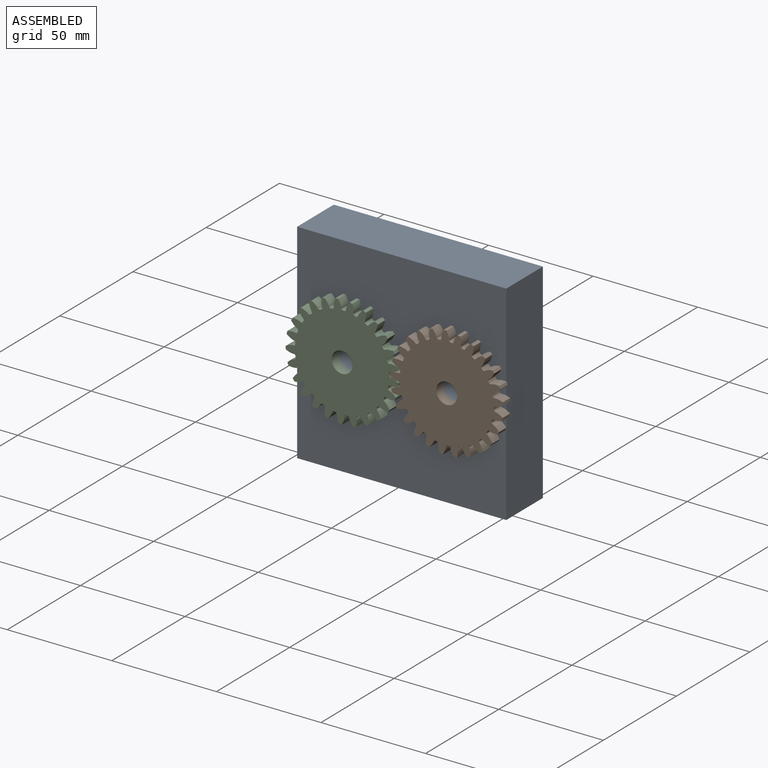
[diagram: assembled view]
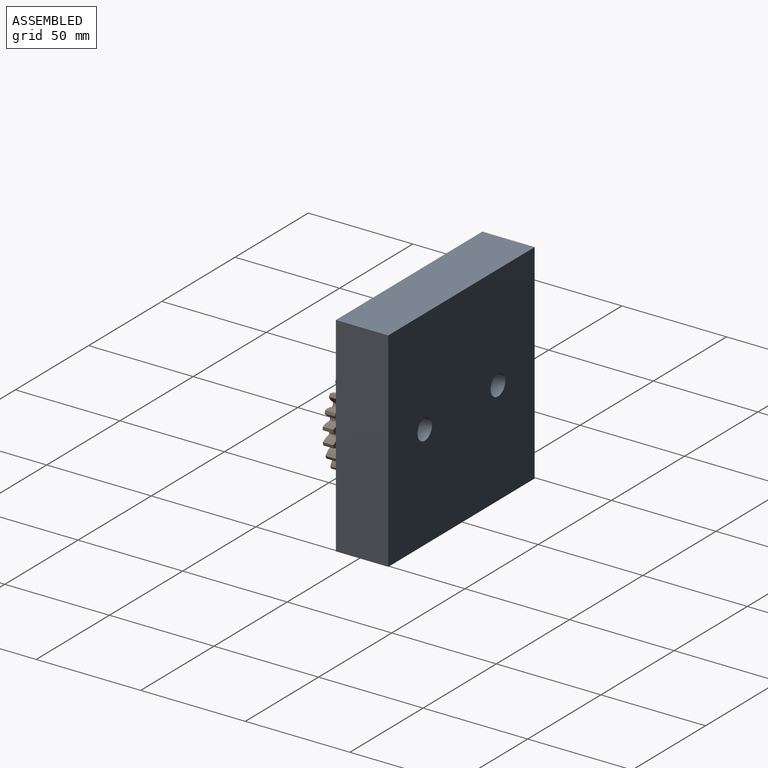
[diagram: assembled view, second angle]
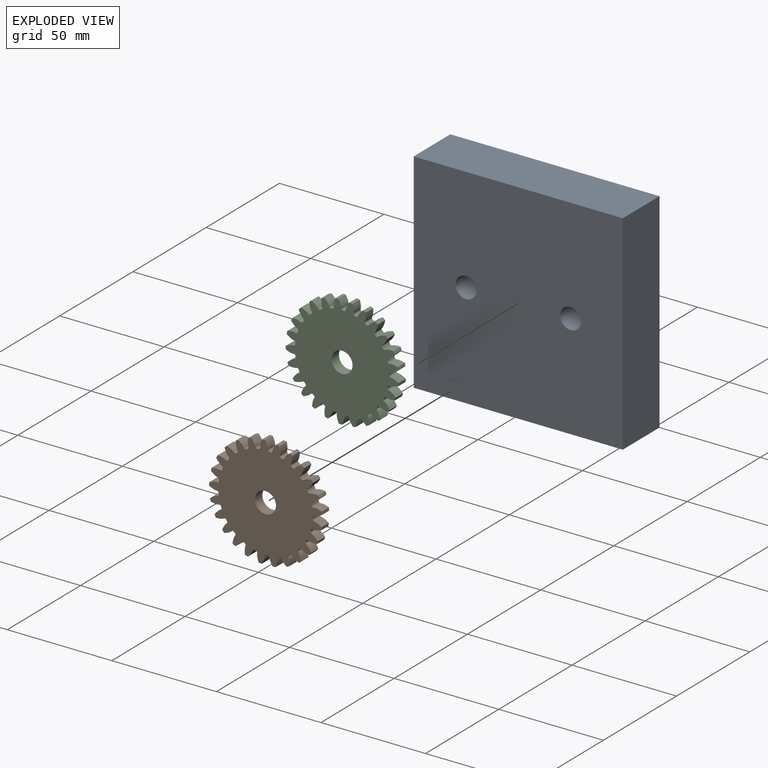
[diagram: exploded view]
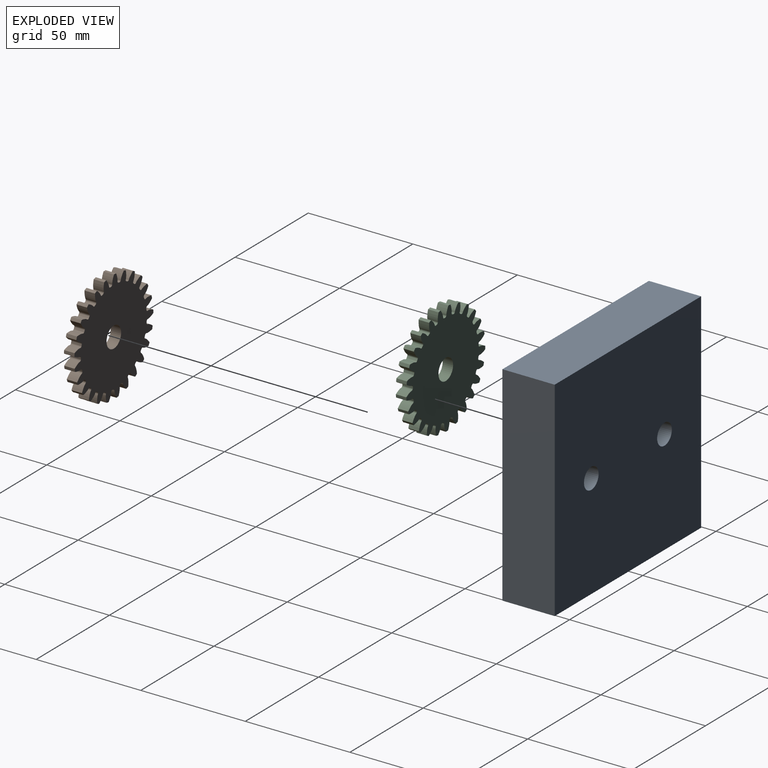
[diagram: exploded view, second angle]
ASSEMBLY  parts=3 mates=4
PART A: 8 faces, bbox 100x25x100 mm
  f0: plane 100x25mm, normal (0,0,1), area 2500mm2, adj f1,f5,f6,f7
  f1: plane 100x25mm, normal (-1,0,0), area 2500mm2, adj f0,f2,f6,f7
  f2: plane 100x25mm, normal (0,0,-1), area 2500mm2, adj f1,f5,f6,f7
  f3: cylinder r=5mm len=25mm, axis (0,1,0), area 785.4mm2, adj f6,f7
  f4: cylinder r=5mm len=25mm, axis (0,1,0), area 785.4mm2, adj f6,f7
  f5: plane 100x25mm, normal (1,0,0), area 2500mm2, adj f0,f2,f6,f7
  f6: plane 100x100mm, normal (0,-1,0), area 9842.9mm2, adj f0,f1,f2,f3,f4,f5
  f7: plane 100x100mm, normal (0,1,0), area 9842.9mm2, adj f0,f1,f2,f3,f4,f5
PART B: 153 faces, bbox 53.9x5x54 mm
  f0: cylinder r=27mm len=5mm, axis (0,1,0), area 7.2mm2, adj f24,f27,f138,f150
  f1: cylinder r=27mm len=5mm, axis (0,1,0), area 7.2mm2, adj f24,f27,f145,f148
  f2: cylinder r=27mm len=5mm, axis (0,1,0), area 7.2mm2, adj f24,f27,f133,f140
  f3: cylinder r=27mm len=5mm, axis (0,1,0), area 7.2mm2, adj f24,f27,f128,f135
  f4: cylinder r=27mm len=5mm, axis (0,1,0), area 7.2mm2, adj f24,f27,f123,f130
  f5: cylinder r=27mm len=5mm, axis (0,1,0), area 7.2mm2, adj f24,f27,f113,f125
  f6: cylinder r=27mm len=5mm, axis (0,1,0), area 7.2mm2, adj f24,f27,f108,f120
  f7: cylinder r=27mm len=5mm, axis (0,1,0), area 7.2mm2, adj f24,f27,f115,f118
  f8: cylinder r=27mm len=5mm, axis (0,1,0), area 7.2mm2, adj f24,f27,f103,f110
  f9: cylinder r=27mm len=5mm, axis (0,1,0), area 7.2mm2, adj f24,f27,f98,f105
  f10: cylinder r=27mm len=5mm, axis (0,1,0), area 7.2mm2, adj f24,f27,f93,f100
  f11: cylinder r=27mm len=5mm, axis (0,1,0), area 7.2mm2, adj f24,f27,f78,f95
  f12: cylinder r=27mm len=5mm, axis (0,1,0), area 7.2mm2, adj f24,f27,f28,f90
  f13: cylinder r=27mm len=5mm, axis (0,1,0), area 7.2mm2, adj f24,f27,f85,f88
  f14: cylinder r=27mm len=5mm, axis (0,1,0), area 7.2mm2, adj f24,f27,f73,f80
  f15: cylinder r=27mm len=5mm, axis (0,1,0), area 7.2mm2, adj f24,f27,f75,f83
  f16: cylinder r=27mm len=5mm, axis (0,1,0), area 7.2mm2, adj f24,f27,f70,f143
  f17: cylinder r=27mm len=5mm, axis (0,1,0), area 7.2mm2, adj f24,f27,f65,f68
  f18: cylinder r=27mm len=5mm, axis (0,1,0), area 7.2mm2, adj f24,f27,f60,f63
  f19: cylinder r=27mm len=5mm, axis (0,1,0), area 7.2mm2, adj f24,f27,f55,f58
  f20: cylinder r=27mm len=5mm, axis (0,1,0), area 7.2mm2, adj f24,f27,f43,f50
  f21: cylinder r=27mm len=5mm, axis (0,1,0), area 7.2mm2, adj f24,f27,f33,f45
  f22: cylinder r=27mm len=5mm, axis (0,1,0), area 7.2mm2, adj f24,f27,f40,f53
  f23: cylinder r=27mm len=5mm, axis (0,1,0), area 7.2mm2, adj f24,f27,f35,f38
  f24: plane 53.97x53.87mm, normal (0,-1,0), area 1856mm2, adj f0,f1,f2,f3,f4,f5,f6,f7
  f25: cylinder r=5mm len=10mm, axis (0,1,0), area 157.1mm2, adj f24,f27
  f26: cylinder r=27mm len=5mm, axis (0,1,0), area 7.2mm2, adj f24,f27,f30,f48
  f27: plane 53.97x53.87mm, normal (0,1,0), area 1856mm2, adj f0,f1,f2,f3,f4,f5,f6,f7
  f28: extruded ~5x3.65mm, area 20.1mm2, adj f12,f24,f27,f31
  f29: cylinder r=22.5mm len=5mm, axis (0,1,0), area 3.4mm2, adj f24,f27,f31,f32
  f30: extruded ~5x3.65mm, area 20.1mm2, adj f24,f26,f27,f32
  f31: cylinder r=0.76mm len=5mm, axis (0,1,0), area 5.8mm2, adj f24,f27,f28,f29
  f32: cylinder r=0.76mm len=5mm, axis (0,1,0), area 5.8mm2, adj f24,f27,f29,f30
  f33: extruded ~5x3.73mm, area 20.1mm2, adj f21,f24,f27,f36
  f34: cylinder r=22.5mm len=5mm, axis (0,1,0), area 3.4mm2, adj f24,f27,f36,f37
  f35: extruded ~5x3.64mm, area 20.1mm2, adj f23,f24,f27,f37
  f36: cylinder r=0.76mm len=5mm, axis (0,1,0), area 5.8mm2, adj f24,f27,f33,f34
  f37: cylinder r=0.76mm len=5mm, axis (0,1,0), area 5.8mm2, adj f24,f27,f34,f35
  f38: extruded ~5x3.27mm, area 20.1mm2, adj f23,f24,f27,f41
  f39: cylinder r=22.5mm len=5mm, axis (0,1,0), area 3.4mm2, adj f24,f27,f41,f42
  f40: extruded ~5x3.92mm, area 20.1mm2, adj f22,f24,f27,f42
  f41: cylinder r=0.76mm len=5mm, axis (0,1,0), area 5.8mm2, adj f24,f27,f38,f39
  f42: cylinder r=0.76mm len=5mm, axis (0,1,0), area 5.8mm2, adj f24,f27,f39,f40
  f43: extruded ~5x3.95mm, area 20.1mm2, adj f20,f24,f27,f46
  f44: cylinder r=22.5mm len=5mm, axis (0,1,0), area 3.4mm2, adj f24,f27,f46,f47
  f45: extruded ~5x3.12mm, area 20.1mm2, adj f21,f24,f27,f47
  f46: cylinder r=0.76mm len=5mm, axis (0,1,0), area 5.8mm2, adj f24,f27,f43,f44
  f47: cylinder r=0.76mm len=5mm, axis (0,1,0), area 5.8mm2, adj f24,f27,f44,f45
  f48: extruded ~5x3.92mm, area 20.1mm2, adj f24,f26,f27,f51
  f49: cylinder r=22.5mm len=5mm, axis (0,1,0), area 3.4mm2, adj f24,f27,f51,f52
  f50: extruded ~5x3.15mm, area 20.1mm2, adj f20,f24,f27,f52
  f51: cylinder r=0.76mm len=5mm, axis (0,1,0), area 5.8mm2, adj f24,f27,f48,f49
  f52: cylinder r=0.76mm len=5mm, axis (0,1,0), area 5.8mm2, adj f24,f27,f49,f50
  f53: extruded ~5x2.99mm, area 20.1mm2, adj f22,f24,f27,f56
  f54: cylinder r=22.5mm len=5mm, axis (0,1,0), area 3.4mm2, adj f24,f27,f56,f57
  f55: extruded ~5x3.95mm, area 20.1mm2, adj f19,f24,f27,f57
  f56: cylinder r=0.76mm len=5mm, axis (0,1,0), area 5.8mm2, adj f24,f27,f53,f54
  f57: cylinder r=0.76mm len=5mm, axis (0,1,0), area 5.8mm2, adj f24,f27,f54,f55
  f58: extruded ~5x3.55mm, area 20.1mm2, adj f19,f24,f27,f61
  f59: cylinder r=22.5mm len=5mm, axis (0,1,0), area 3.4mm2, adj f24,f27,f61,f62
  f60: extruded ~5x3.74mm, area 20.1mm2, adj f18,f24,f27,f62
  f61: cylinder r=0.76mm len=5mm, axis (0,1,0), area 5.8mm2, adj f24,f27,f58,f59
  f62: cylinder r=0.76mm len=5mm, axis (0,1,0), area 5.8mm2, adj f24,f27,f59,f60
  f63: extruded ~5x3.88mm, area 20.1mm2, adj f18,f24,f27,f66
  f64: cylinder r=22.5mm len=5mm, axis (0,1,0), area 3.4mm2, adj f24,f27,f66,f67
  f65: extruded ~5x3.29mm, area 20.1mm2, adj f17,f24,f27,f67
  f66: cylinder r=0.76mm len=5mm, axis (0,1,0), area 5.8mm2, adj f24,f27,f63,f64
  f67: cylinder r=0.76mm len=5mm, axis (0,1,0), area 5.8mm2, adj f24,f27,f64,f65
  f68: extruded ~5x3.97mm, area 20.1mm2, adj f17,f24,f27,f71
  f69: cylinder r=22.5mm len=5mm, axis (0,1,0), area 3.4mm2, adj f24,f27,f71,f72
  f70: extruded ~5x2.96mm, area 20.1mm2, adj f16,f24,f27,f72
  f71: cylinder r=0.76mm len=5mm, axis (0,1,0), area 5.8mm2, adj f24,f27,f68,f69
  f72: cylinder r=0.76mm len=5mm, axis (0,1,0), area 5.8mm2, adj f24,f27,f69,f70
  f73: extruded ~5x3.64mm, area 20.1mm2, adj f14,f24,f27,f76
  f74: cylinder r=22.5mm len=5mm, axis (0,1,0), area 3.4mm2, adj f24,f27,f76,f77
  f75: extruded ~5x3.73mm, area 20.1mm2, adj f15,f24,f27,f77
  f76: cylinder r=0.76mm len=5mm, axis (0,1,0), area 5.8mm2, adj f24,f27,f73,f74
  f77: cylinder r=0.76mm len=5mm, axis (0,1,0), area 5.8mm2, adj f24,f27,f74,f75
  f78: extruded ~5x3.92mm, area 20.1mm2, adj f11,f24,f27,f81
  f79: cylinder r=22.5mm len=5mm, axis (0,1,0), area 3.4mm2, adj f24,f27,f81,f82
  f80: extruded ~5x3.27mm, area 20.1mm2, adj f14,f24,f27,f82
  f81: cylinder r=0.76mm len=5mm, axis (0,1,0), area 5.8mm2, adj f24,f27,f78,f79
  f82: cylinder r=0.76mm len=5mm, axis (0,1,0), area 5.8mm2, adj f24,f27,f79,f80
  f83: extruded ~5x3.12mm, area 20.1mm2, adj f15,f24,f27,f86
  f84: cylinder r=22.5mm len=5mm, axis (0,1,0), area 3.4mm2, adj f24,f27,f86,f87
  f85: extruded ~5x3.95mm, area 20.1mm2, adj f13,f24,f27,f87
  f86: cylinder r=0.76mm len=5mm, axis (0,1,0), area 5.8mm2, adj f24,f27,f83,f84
  f87: cylinder r=0.76mm len=5mm, axis (0,1,0), area 5.8mm2, adj f24,f27,f84,f85
  f88: extruded ~5x3.15mm, area 20.1mm2, adj f13,f24,f27,f91
  f89: cylinder r=22.5mm len=5mm, axis (0,1,0), area 3.4mm2, adj f24,f27,f91,f92
  f90: extruded ~5x3.92mm, area 20.1mm2, adj f12,f24,f27,f92
  f91: cylinder r=0.76mm len=5mm, axis (0,1,0), area 5.8mm2, adj f24,f27,f88,f89
  f92: cylinder r=0.76mm len=5mm, axis (0,1,0), area 5.8mm2, adj f24,f27,f89,f90
  f93: extruded ~5x3.95mm, area 20.1mm2, adj f10,f24,f27,f96
  f94: cylinder r=22.5mm len=5mm, axis (0,1,0), area 3.4mm2, adj f24,f27,f96,f97
  f95: extruded ~5x2.99mm, area 20.1mm2, adj f11,f24,f27,f97
  f96: cylinder r=0.76mm len=5mm, axis (0,1,0), area 5.8mm2, adj f24,f27,f93,f94
  f97: cylinder r=0.76mm len=5mm, axis (0,1,0), area 5.8mm2, adj f24,f27,f94,f95
  f98: extruded ~5x3.74mm, area 20.1mm2, adj f9,f24,f27,f101
  f99: cylinder r=22.5mm len=5mm, axis (0,1,0), area 3.4mm2, adj f24,f27,f101,f102
  f100: extruded ~5x3.55mm, area 20.1mm2, adj f10,f24,f27,f102
  f101: cylinder r=0.76mm len=5mm, axis (0,1,0), area 5.8mm2, adj f24,f27,f98,f99
  f102: cylinder r=0.76mm len=5mm, axis (0,1,0), area 5.8mm2, adj f24,f27,f99,f100
  f103: extruded ~5x3.29mm, area 20.1mm2, adj f8,f24,f27,f106
  f104: cylinder r=22.5mm len=5mm, axis (0,1,0), area 3.4mm2, adj f24,f27,f106,f107
  f105: extruded ~5x3.88mm, area 20.1mm2, adj f9,f24,f27,f107
  f106: cylinder r=0.76mm len=5mm, axis (0,1,0), area 5.8mm2, adj f24,f27,f103,f104
  f107: cylinder r=0.76mm len=5mm, axis (0,1,0), area 5.8mm2, adj f24,f27,f104,f105
  f108: extruded ~5x2.96mm, area 20.1mm2, adj f6,f24,f27,f111
  f109: cylinder r=22.5mm len=5mm, axis (0,1,0), area 3.4mm2, adj f24,f27,f111,f112
  f110: extruded ~5x3.97mm, area 20.1mm2, adj f8,f24,f27,f112
  f111: cylinder r=0.76mm len=5mm, axis (0,1,0), area 5.8mm2, adj f24,f27,f108,f109
  f112: cylinder r=0.76mm len=5mm, axis (0,1,0), area 5.8mm2, adj f24,f27,f109,f110
  f113: extruded ~5x3.87mm, area 20.1mm2, adj f5,f24,f27,f116
  f114: cylinder r=22.5mm len=5mm, axis (0,1,0), area 3.4mm2, adj f24,f27,f116,f117
  f115: extruded ~5x3.41mm, area 20.1mm2, adj f7,f24,f27,f117
  f116: cylinder r=0.76mm len=5mm, axis (0,1,0), area 5.8mm2, adj f24,f27,f113,f114
  f117: cylinder r=0.76mm len=5mm, axis (0,1,0), area 5.8mm2, adj f24,f27,f114,f115
  f118: extruded ~5x3.53mm, area 20.1mm2, adj f7,f24,f27,f121
  f119: cylinder r=22.5mm len=5mm, axis (0,1,0), area 3.4mm2, adj f24,f27,f121,f122
  f120: extruded ~5x3.81mm, area 20.1mm2, adj f6,f24,f27,f122
  f121: cylinder r=0.76mm len=5mm, axis (0,1,0), area 5.8mm2, adj f24,f27,f118,f119
  f122: cylinder r=0.76mm len=5mm, axis (0,1,0), area 5.8mm2, adj f24,f27,f119,f120
  f123: extruded ~5x3.97mm, area 20.1mm2, adj f4,f24,f27,f126
  f124: cylinder r=22.5mm len=5mm, axis (0,1,0), area 3.4mm2, adj f24,f27,f126,f127
  f125: extruded ~5x2.82mm, area 20.1mm2, adj f5,f24,f27,f127
  f126: cylinder r=0.76mm len=5mm, axis (0,1,0), area 5.8mm2, adj f24,f27,f123,f124
  f127: cylinder r=0.76mm len=5mm, axis (0,1,0), area 5.8mm2, adj f24,f27,f124,f125
  f128: extruded ~5x3.82mm, area 20.1mm2, adj f3,f24,f27,f131
  f129: cylinder r=22.5mm len=5mm, axis (0,1,0), area 3.4mm2, adj f24,f27,f131,f132
  f130: extruded ~5x3.43mm, area 20.1mm2, adj f4,f24,f27,f132
  f131: cylinder r=0.76mm len=5mm, axis (0,1,0), area 5.8mm2, adj f24,f27,f128,f129
  f132: cylinder r=0.76mm len=5mm, axis (0,1,0), area 5.8mm2, adj f24,f27,f129,f130
  f133: extruded ~5x3.43mm, area 20.1mm2, adj f2,f24,f27,f136
  f134: cylinder r=22.5mm len=5mm, axis (0,1,0), area 3.4mm2, adj f24,f27,f136,f137
  f135: extruded ~5x3.82mm, area 20.1mm2, adj f3,f24,f27,f137
  f136: cylinder r=0.76mm len=5mm, axis (0,1,0), area 5.8mm2, adj f24,f27,f133,f134
  f137: cylinder r=0.76mm len=5mm, axis (0,1,0), area 5.8mm2, adj f24,f27,f134,f135
  f138: extruded ~5x2.82mm, area 20.1mm2, adj f0,f24,f27,f141
  f139: cylinder r=22.5mm len=5mm, axis (0,1,0), area 3.4mm2, adj f24,f27,f141,f142
  f140: extruded ~5x3.97mm, area 20.1mm2, adj f2,f24,f27,f142
  f141: cylinder r=0.76mm len=5mm, axis (0,1,0), area 5.8mm2, adj f24,f27,f138,f139
  f142: cylinder r=0.76mm len=5mm, axis (0,1,0), area 5.8mm2, adj f24,f27,f139,f140
  f143: extruded ~5x3.81mm, area 20.1mm2, adj f16,f24,f27,f146
  f144: cylinder r=22.5mm len=5mm, axis (0,1,0), area 3.4mm2, adj f24,f27,f146,f147
  f145: extruded ~5x3.53mm, area 20.1mm2, adj f1,f24,f27,f147
  f146: cylinder r=0.76mm len=5mm, axis (0,1,0), area 5.8mm2, adj f24,f27,f143,f144
  f147: cylinder r=0.76mm len=5mm, axis (0,1,0), area 5.8mm2, adj f24,f27,f144,f145
  f148: extruded ~5x3.41mm, area 20.1mm2, adj f1,f24,f27,f151
  f149: cylinder r=22.5mm len=5mm, axis (0,1,0), area 3.4mm2, adj f24,f27,f151,f152
  f150: extruded ~5x3.87mm, area 20.1mm2, adj f0,f24,f27,f152
  f151: cylinder r=0.76mm len=5mm, axis (0,1,0), area 5.8mm2, adj f24,f27,f148,f149
  f152: cylinder r=0.76mm len=5mm, axis (0,1,0), area 5.8mm2, adj f24,f27,f149,f150
PART C: same geometry as B
PLACE A t=(4.53,16.49,3.71)mm fixed
PLACE B rot(axis=(0,1,0),131.4deg) t=(29.53,-8.51,3.71)mm
PLACE C rot(axis=(0,-1,0),131.4deg) t=(-20.47,-8.51,3.71)mm
MATE cylindrical B.f0 <-> A.f4  axis (0,-1,0) through (29.53,-13.51,3.71)mm
MATE planar B.f0 <-> A.f4  axis (0,1,0) through (29.53,-8.51,3.71)mm
MATE cylindrical C.f0 <-> A.f3  axis (0,-1,0) through (-20.47,-13.51,3.71)mm
MATE planar C.f0 <-> A.f3  axis (0,1,0) through (-20.47,-8.51,3.71)mm
